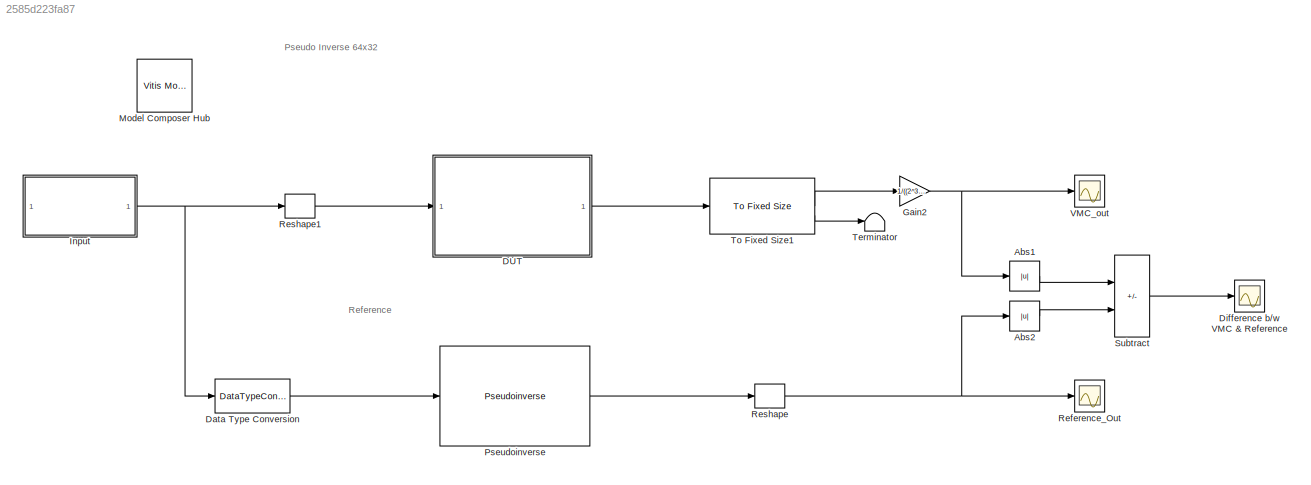
MODEL slx_2585d223fa87
KIND model
CONFIG AbsTol = auto
CONFIG EnableMultiTasking = off
CONFIG FixedStep = auto
CONFIG MaxStep = auto
CONFIG MinStep = auto
CONFIG PostLoadFcn = xmcCheckSlxPath(bdroot)\nsetup
CONFIG RelTol = 1e-3
CONFIG SampleTimeConstraint = Unconstrained
CONFIG SolverName = VariableStepAuto
CONFIG StartTime = 0.0
CONFIG StopTime = 16384
BLOCK [Abs] Abs1
  SaturateOnIntegerOverflow = off
BLOCK [Abs] Abs2
  SaturateOnIntegerOverflow = off
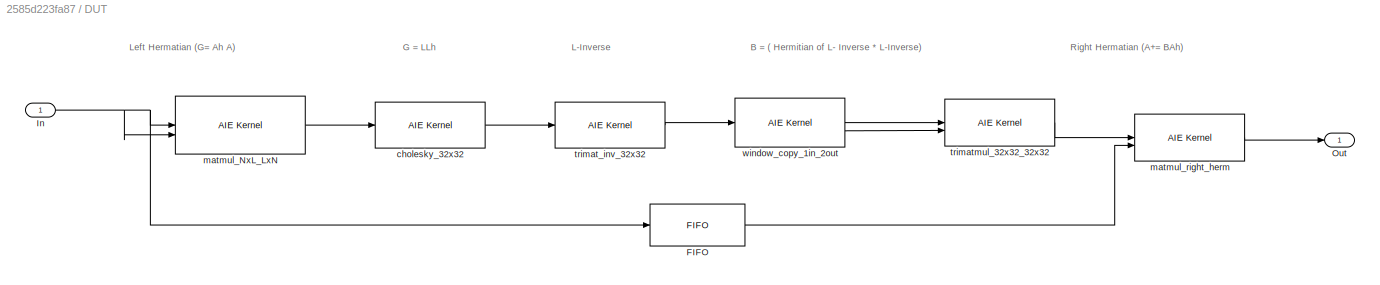
BLOCK [SubSystem] DUT
  ShowPortLabels = FromPortBlockName
BLOCK [Reference] DUT/FIFO  REF=aieBasic/FIFO
  SourceBlock = aieBasic/FIFO
  SourceType = FIFO
BLOCK [Inport] DUT/In
BLOCK [Outport] DUT/Out
BLOCK [Reference] DUT/cholesky_32x32  REF=aieBasic/AIE Kernel
  SourceBlock = aieBasic/AIE Kernel
  SourceType = AIE Kernel Function
BLOCK [Reference] DUT/matmul_NxL_LxN  REF=aieBasic/AIE Kernel
  SourceBlock = aieBasic/AIE Kernel
  SourceType = AIE Kernel Function
BLOCK [Reference] DUT/matmul_right_herm  REF=aieBasic/AIE Kernel
  SourceBlock = aieBasic/AIE Kernel
  SourceType = AIE Kernel Function
BLOCK [Reference] DUT/trimat_inv_32x32  REF=aieBasic/AIE Kernel
  SourceBlock = aieBasic/AIE Kernel
  SourceType = AIE Kernel Function
BLOCK [Reference] DUT/trimatmul_32x32_32x32  REF=aieBasic/AIE Kernel
  SourceBlock = aieBasic/AIE Kernel
  SourceType = AIE Kernel Function
BLOCK [Reference] DUT/window_copy_1in_2out  REF=aieBasic/AIE Kernel
  SourceBlock = aieBasic/AIE Kernel
  SourceType = AIE Kernel Function
BLOCK [DataTypeConversion] Data Type Conversion
  OutDataTypeStr = double
  RndMeth = Floor
  SaturateOnIntegerOverflow = off
BLOCK [Scope] Difference b//w VMC & Reference
  Floating = off
  NumInputPorts = 1
  ScopeSpecificationString = Simulink.scopes.TimeScopeBlockCfg('CurrentConfiguration', extmgr.ConfigurationSet(extmgr.Configuration('Core','General UI',true),extmgr.Configuration('Core','Source UI',true),extmgr.Configuration('Sources','WiredSimulink',true,'DataLoggingVariableName','ScopeData1'),extmgr.Configuration('Visuals','Time Domain',true,'InputProcessing','FrameProcessing','PlotType','Line','SerializedDisplays',{struct(...<+1666ch>
BLOCK [Gain] Gain2
  Gain = 1/((2^30))
  OutDataTypeStr = double
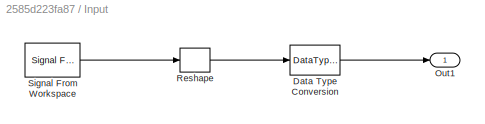
BLOCK [SubSystem] Input
BLOCK [DataTypeConversion] Input/Data Type Conversion
  OutDataTypeStr = int16
  RndMeth = Floor
  SaturateOnIntegerOverflow = off
BLOCK [Outport] Input/Out1
  VectorParamsAs1DForOutWhenUnconnected = off
BLOCK [Reshape] Input/Reshape
  OutputDimensionality = Customize
  OutputDimensions = [64,32]
BLOCK [Reference] Input/Signal From Workspace  REF=dspsrcs4/Signal From
Workspace
  SourceBlock = dspsrcs4/Signal From\nWorkspace
  SourceType = Signal From Workspace
BLOCK [Reference] Model Composer Hub  REF=vmcUtilities/Vitis Model Composer Hub
  SourceBlock = vmcUtilities/Vitis Model Composer Hub
  SourceType = VMC Hub
  Tag = genX
  UserDataPersistent = on
BLOCK [Reference] Pseudoinverse  REF=dspinverses/Pseudoinverse
  SourceBlock = dspinverses/Pseudoinverse
  SourceType = Pseudoinverse
BLOCK [Scope] Reference_Out
  Floating = off
  NumInputPorts = 1
  ScopeSpecificationString = Simulink.scopes.TimeScopeBlockCfg('CurrentConfiguration', extmgr.ConfigurationSet(extmgr.Configuration('Core','General UI',true),extmgr.Configuration('Core','Source UI',true),extmgr.Configuration('Sources','WiredSimulink',true,'DataLoggingVariableName','ScopeData2'),extmgr.Configuration('Visuals','Time Domain',true,'InputProcessing','FrameProcessing','SerializedDisplays',{struct('MinYLimReal','-0....<+1676ch>
BLOCK [Reshape] Reshape
BLOCK [Reshape] Reshape1
BLOCK [Sum] Subtract
  IconShape = rectangular
  Inputs = +-
BLOCK [Terminator] Terminator
BLOCK [Reference] To Fixed Size1  REF=aieUtilities/To Fixed Size
  SourceBlock = aieUtilities/To Fixed Size
  SourceType = To Fixed Size
BLOCK [Scope] VMC_out
  Floating = off
  NumInputPorts = 1
  ScopeSpecificationString = Simulink.scopes.TimeScopeBlockCfg('CurrentConfiguration', extmgr.ConfigurationSet(extmgr.Configuration('Core','General UI',true),extmgr.Configuration('Core','Source UI',true),extmgr.Configuration('Sources','WiredSimulink',true),extmgr.Configuration('Visuals','Time Domain',true,'InputProcessing','FrameProcessing','SerializedDisplays',{struct('MinYLimReal','-0.00003','MaxYLimReal','0.000028','YLabel...<+1633ch>
ANNOTATION (root): Reference
ANNOTATION (root): Pseudo Inverse 64x32
ANNOTATION DUT: B = ( Hermitian of L- Inverse * L-Inverse)
ANNOTATION DUT: G = LL h
ANNOTATION DUT: L-Inverse
ANNOTATION DUT: Left Hermatian (G= A h A)
ANNOTATION DUT: Right Hermatian (A+= BA h )
LINE Abs1:1 -> Subtract:1
LINE Abs2:1 -> Subtract:2
LINE DUT/FIFO:1 -> DUT/matmul_right_herm:2
NET DUT/In:1 -> DUT/FIFO:1, DUT/matmul_NxL_LxN:1, DUT/matmul_NxL_LxN:2
LINE DUT/cholesky_32x32:1 -> DUT/trimat_inv_32x32:1
LINE DUT/matmul_NxL_LxN:1 -> DUT/cholesky_32x32:1
LINE DUT/matmul_right_herm:1 -> DUT/Out:1
LINE DUT/trimat_inv_32x32:1 -> DUT/window_copy_1in_2out:1
LINE DUT/trimatmul_32x32_32x32:1 -> DUT/matmul_right_herm:1
LINE DUT/window_copy_1in_2out:1 -> DUT/trimatmul_32x32_32x32:1
LINE DUT/window_copy_1in_2out:2 -> DUT/trimatmul_32x32_32x32:2
LINE DUT:1 -> To Fixed Size1:1
LINE Data Type Conversion:1 -> Pseudoinverse:1
NET Gain2:1 -> Abs1:1, VMC_out:1
LINE Input/Data Type Conversion:1 -> Input/Out1:1
LINE Input/Reshape:1 -> Input/Data Type Conversion:1
LINE Input/Signal From Workspace:1 -> Input/Reshape:1
NET Input:1 -> Data Type Conversion:1, Reshape1:1
LINE Pseudoinverse:1 -> Reshape:1
LINE Reshape1:1 -> DUT:1
NET Reshape:1 -> Abs2:1, Reference_Out:1
LINE Subtract:1 -> Difference b//w VMC & Reference:1
LINE To Fixed Size1:1 -> Gain2:1
LINE To Fixed Size1:2 -> Terminator:1
note: NET lines group one-source signal fan-out (src -> all destinations, sorted); 1:1 wires keep LINE
